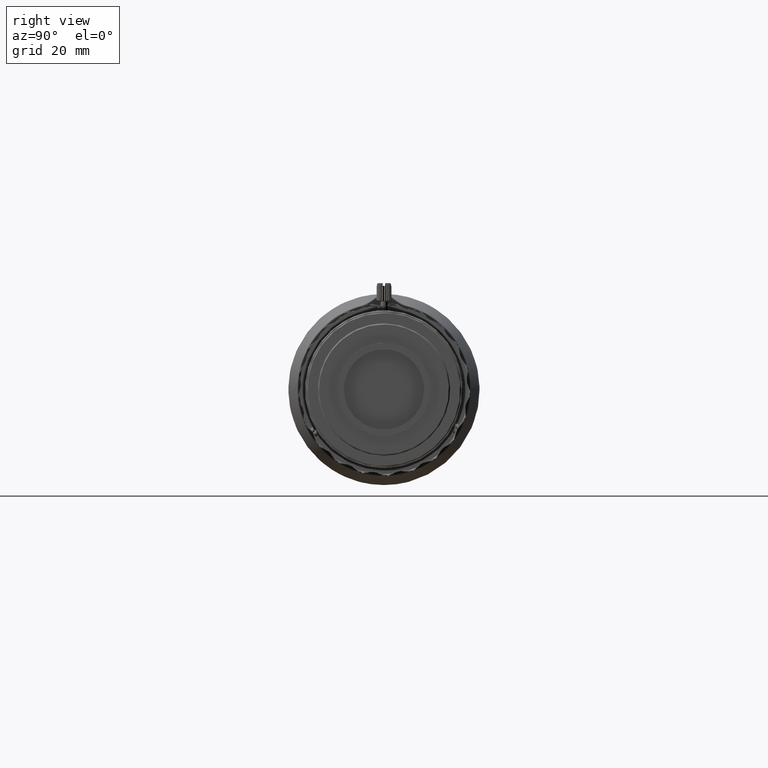
[diagram: clean part render]
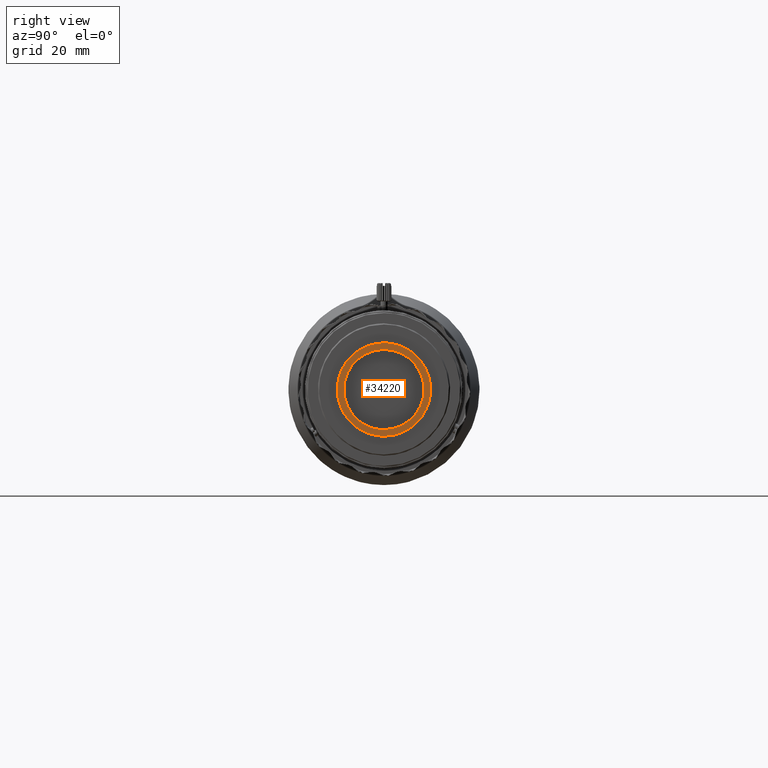
[diagram: same view with one face highlighted and labeled with its STEP entity id]
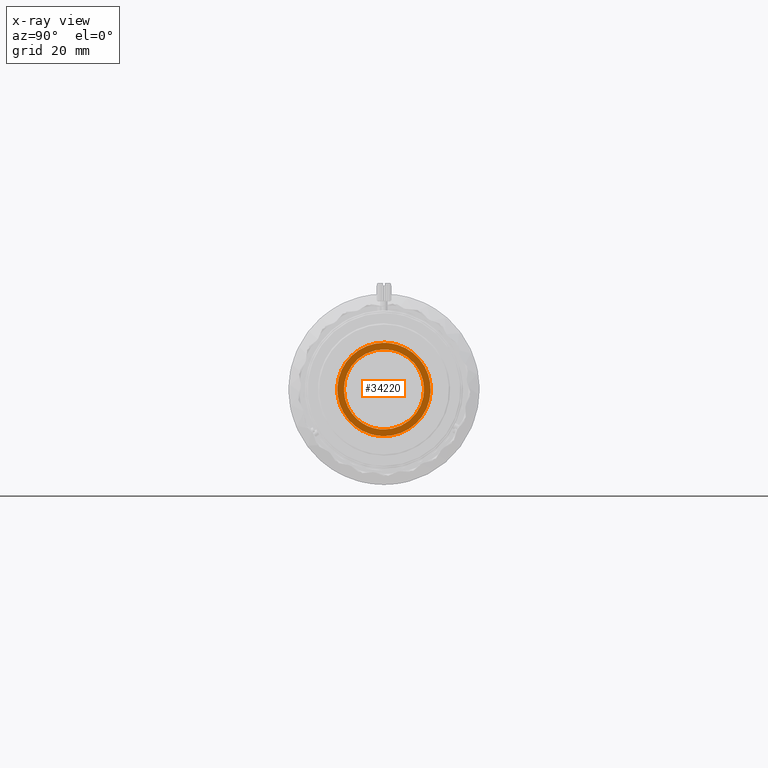
[diagram: x-ray of the same camera — body ghosted, the highlighted face saturated]
A machine part, right view. The second image highlights one B-rep face of the part: STEP entity #34220.
The next image is the same camera in x-ray: the body ghosted, the highlighted face saturated — about 0% of this face is hidden behind the body in this view.
In plain terms, the highlighted face is a freeform B-spline surface patch.
Its self-contained STEP definition (entity closure, byte-faithful):
#84 =( BOUNDED_CURVE ( )  B_SPLINE_CURVE ( 3, ( #19830, #26311, #37650, #22626 ),
 .UNSPECIFIED., .F., .F. ) 
 B_SPLINE_CURVE_WITH_KNOTS ( ( 4, 4 ),
 ( 0.0000000000000000000, 1.000000000000000000 ),
 .UNSPECIFIED. ) 
 CURVE ( )  GEOMETRIC_REPRESENTATION_ITEM ( )  RATIONAL_B_SPLINE_CURVE ( ( 1.000000000000000000, 0.3333333335299309974, 0.3333333335299309974, 1.000000000000000000 ) ) 
 REPRESENTATION_ITEM ( '' )  );
#166 = CARTESIAN_POINT ( 'NONE',  ( 99.43382186600003081, 10.89999941100000669, -6.385071828999999255 ) ) ;
#914 = CARTESIAN_POINT ( 'NONE',  ( 99.43382186600000239, -6.666666666666669494E-10, 12.70000170706231835 ) ) ;
#2207 = CARTESIAN_POINT ( 'NONE',  ( 99.43382186600000239, 12.05238907553014727, 4.089662642862092135 ) ) ;
#2381 =( BOUNDED_CURVE ( )  B_SPLINE_CURVE ( 3, ( #24944, #45305, #166, #42306, #41842, #35148, #34460 ),
 .UNSPECIFIED., .F., .F. ) 
 B_SPLINE_CURVE_WITH_KNOTS ( ( 4, 3, 4 ),
 ( 0.0000000000000000000, 0.5000000000000000000, 1.000000000000000000 ),
 .UNSPECIFIED. ) 
 CURVE ( )  GEOMETRIC_REPRESENTATION_ITEM ( )  RATIONAL_B_SPLINE_CURVE ( ( 1.000000000000000000, 0.8047378540760219412, 0.8047378540760219412, 1.000000000000000000, 0.8047378540760219412, 0.8047378540760219412, 1.000000000000000000 ) ) 
 REPRESENTATION_ITEM ( '' )  );
#2431 = CARTESIAN_POINT ( 'NONE',  ( 99.43382186599998818, 11.41415422850042027, 5.630497843605174246 ) ) ;
#2928 = CARTESIAN_POINT ( 'NONE',  ( 99.43382186600000239, -12.61865940100693528, -1.659776475881465485 ) ) ;
#3156 = CARTESIAN_POINT ( 'NONE',  ( 99.43382186600000239, -6.666666666666669494E-10, 12.70000170706231835 ) ) ;
#5841 = CARTESIAN_POINT ( 'NONE',  ( 99.43382186600000239, -5.630497843605176911, -11.41415424563695957 ) ) ;
#5903 = CARTESIAN_POINT ( 'NONE',  ( 99.43382186600000239, 12.70000170318696853, -0.8338940016816626111 ) ) ;
#6596 = CARTESIAN_POINT ( 'NONE',  ( 99.43382186600000239, 10.09637880029967327, -7.749100425814749116 ) ) ;
#7089 = CARTESIAN_POINT ( 'NONE',  ( 99.43382186600001660, -0.8338940016816626111, 12.70000170318696675 ) ) ;
#8427 = CARTESIAN_POINT ( 'NONE',  ( 99.43382186600001660, -7.749100425814752668, -10.09637880029967327 ) ) ;
#8484 = CARTESIAN_POINT ( 'NONE',  ( 99.43382186600000239, 4.089662642862091246, -12.05238907553014549 ) ) ;
#8734 = CARTESIAN_POINT ( 'NONE',  ( 99.43382186600000239, 12.85240173000000041, -12.85240173000000041 ) ) ;
#9162 = CARTESIAN_POINT ( 'NONE',  ( 99.43382186600000239, 12.29329010660414134, -3.295518369317349094 ) ) ;
#9567 = EDGE_CURVE ( 'NONE', #24780, #23780, #10948, .T. ) ;
#9618 = CARTESIAN_POINT ( 'NONE',  ( 99.43382186600000239, 12.61865940100693528, 1.659776475881463931 ) ) ;
#9847 = CARTESIAN_POINT ( 'NONE',  ( 99.43382186600001660, 1.659776475881463487, 12.61865938387039954 ) ) ;
#9885 = CARTESIAN_POINT ( 'NONE',  ( 99.43382186600000239, -12.70000170318696853, 0.8338940016816613898 ) ) ;
#10076 = CARTESIAN_POINT ( 'NONE',  ( 99.43382186600000239, 5.630497843605174246, 11.41415424563695424 ) ) ;
#10567 = CARTESIAN_POINT ( 'NONE',  ( 99.43382186600001660, -11.02295217345432476, 6.362385400195707419 ) ) ;
#10948 = B_SPLINE_CURVE_WITH_KNOTS ( 'NONE', 3,
 ( #3156, #7089, #42279, #34667, #35351, #38598, #13585, #27705, #20543, #14272, #17516, #10567, #41818, #28393, #13365, #31181, #9885, #24006, #2928, #40148, #44507, #26919, #41020, #12360, #37580, #23447, #8427, #37352, #5841, #44284, #33434, #16273, #12804, #19316 ),
 .UNSPECIFIED., .F., .F.,
 ( 4, 2, 2, 2, 2, 2, 2, 2, 2, 2, 2, 2, 2, 2, 2, 2, 4 ),
 ( 0.0000000000000000000, 0.06250000000000001388, 0.1250000000000000000, 0.1874999999999999722, 0.2499999999999999722, 0.3124999999999999445, 0.3749999999999999445, 0.4375000000000000000, 0.5000000000000000000, 0.5625000000000000000, 0.6250000000000000000, 0.6875000000000000000, 0.7500000000000000000, 0.8125000000000001110, 0.8750000000000001110, 0.9375000000000001110, 1.000000000000000000 ),
 .UNSPECIFIED. ) ;
#11968 = CARTESIAN_POINT ( 'NONE',  ( 99.43382186600000239, 1.659776475881465707, -12.61865940100693528 ) ) ;
#12274 = EDGE_LOOP ( 'NONE', ( #30398, #29707 ) ) ;
#12354 = VERTEX_POINT ( 'NONE', #12758 ) ;
#12360 = CARTESIAN_POINT ( 'NONE',  ( 99.43382186599998818, -10.09637881743620724, -7.749100425814746451 ) ) ;
#12641 = CARTESIAN_POINT ( 'NONE',  ( 99.43382186600001660, 0.8338940016816615008, 12.70000170318696853 ) ) ;
#12758 = CARTESIAN_POINT ( 'NONE',  ( 99.43382186600000239, -6.666666666666669494E-10, 10.89999941594150101 ) ) ;
#12804 = CARTESIAN_POINT ( 'NONE',  ( 99.43382186600000239, -0.8338940016816609457, -12.70000170318696497 ) ) ;
#13069 = VERTEX_POINT ( 'NONE', #44196 ) ;
#13098 = CARTESIAN_POINT ( 'NONE',  ( 99.43382186600001660, 12.70000170318697030, 0.8338940016816626111 ) ) ;
#13327 = CARTESIAN_POINT ( 'NONE',  ( 99.43382186599998818, 9.569909432633094681, -8.390605232302224437 ) ) ;
#13365 = CARTESIAN_POINT ( 'NONE',  ( 99.43382186600000239, -12.29329010660413957, 3.295518369317349094 ) ) ;
#13585 = CARTESIAN_POINT ( 'NONE',  ( 99.43382186599997397, -6.362385400195706531, 11.02295215631779080 ) ) ;
#14032 = ORIENTED_EDGE ( 'NONE', *, *, #9567, .T. ) ;
#14272 = CARTESIAN_POINT ( 'NONE',  ( 99.43382186599997397, -9.569909432633094681, 8.390605232302220884 ) ) ;
#15460 = FACE_OUTER_BOUND ( 'NONE', #24687, .T. ) ;
#15661 = CARTESIAN_POINT ( 'NONE',  ( 99.43382186600000239, 6.362385400195706531, -11.02295215631779257 ) ) ;
#16273 = CARTESIAN_POINT ( 'NONE',  ( 99.43382186600001660, -1.659776475881465041, -12.61865938387039421 ) ) ;
#16338 = CARTESIAN_POINT ( 'NONE',  ( 99.43382186600000239, 11.02295215631779080, 6.362385400195707419 ) ) ;
#17013 = CARTESIAN_POINT ( 'NONE',  ( 99.43382186600001660, 8.390605232302222660, 9.569909432633094681 ) ) ;
#17516 = CARTESIAN_POINT ( 'NONE',  ( 99.43382186599997397, -10.09637880029966972, 7.749100425814748228 ) ) ;
#19151 = CARTESIAN_POINT ( 'NONE',  ( 99.43382186599998818, 5.630497843605176023, -11.41415422850042027 ) ) ;
#19316 = CARTESIAN_POINT ( 'NONE',  ( 99.43382186600000239, -3.333333333333335057E-09, -12.70000170706231835 ) ) ;
#19823 = CARTESIAN_POINT ( 'NONE',  ( 99.43382186600001660, 6.362385400195705643, 11.02295217345432476 ) ) ;
#19830 = CARTESIAN_POINT ( 'NONE',  ( 99.43382186600000239, -6.666666666666669494E-10, 10.89999941594150101 ) ) ;
#20237 = CARTESIAN_POINT ( 'NONE',  ( 99.43382186600000239, -3.333333333333335057E-09, -12.70000170706231835 ) ) ;
#20543 = CARTESIAN_POINT ( 'NONE',  ( 99.43382186600000239, -8.390605232302226213, 9.569909432633094681 ) ) ;
#21376 = B_SPLINE_CURVE_WITH_KNOTS ( 'NONE', 3,
 ( #37193, #25630, #11968, #26084, #8484, #19151, #15661, #33493, #37643, #13327, #6596, #40869, #30917, #44792, #9162, #27436, #5903, #13098, #9618, #34395, #2207, #2431, #16338, #34164, #33717, #17013, #38097, #19823, #10076, #30471, #24198, #9847, #12641, #23732 ),
 .UNSPECIFIED., .F., .F.,
 ( 4, 2, 2, 2, 2, 2, 2, 2, 2, 2, 2, 2, 2, 2, 2, 2, 4 ),
 ( 0.0000000000000000000, 0.06250000000000000000, 0.1250000000000000000, 0.1875000000000000000, 0.2500000000000000000, 0.3125000000000000000, 0.3750000000000000000, 0.4375000000000000000, 0.5000000000000000000, 0.5625000000000000000, 0.6250000000000000000, 0.6875000000000000000, 0.7500000000000000000, 0.8125000000000000000, 0.8750000000000000000, 0.9375000000000000000, 1.000000000000000000 ),
 .UNSPECIFIED. ) ;
#22455 = EDGE_CURVE ( 'NONE', #13069, #12354, #2381, .T. ) ;
#22626 = CARTESIAN_POINT ( 'NONE',  ( 99.43382186600000239, -2.666666666666665316E-09, -10.89999941594150101 ) ) ;
#22872 = CARTESIAN_POINT ( 'NONE',  ( 99.43382186600000239, 12.85240173000000041, 12.85240173000000041 ) ) ;
#23447 = CARTESIAN_POINT ( 'NONE',  ( 99.43382186599998818, -8.390605232302222660, -9.569909432633098234 ) ) ;
#23732 = CARTESIAN_POINT ( 'NONE',  ( 99.43382186600000239, -6.666666666666669494E-10, 12.70000170706231835 ) ) ;
#23780 = VERTEX_POINT ( 'NONE', #20237 ) ;
#24006 = CARTESIAN_POINT ( 'NONE',  ( 99.43382186600001660, -12.70000170318697030, -0.8338940016816616119 ) ) ;
#24198 = CARTESIAN_POINT ( 'NONE',  ( 99.43382186600000239, 3.295518369317349094, 12.29329010660414134 ) ) ;
#24687 = EDGE_LOOP ( 'NONE', ( #36975, #14032 ) ) ;
#24780 = VERTEX_POINT ( 'NONE', #914 ) ;
#24944 = CARTESIAN_POINT ( 'NONE',  ( 99.43382186600000239, -2.666666666666665316E-09, -10.89999941594150101 ) ) ;
#25630 = CARTESIAN_POINT ( 'NONE',  ( 99.43382186599997397, 0.8338940016816613898, -12.70000170318696853 ) ) ;
#25786 = EDGE_CURVE ( 'NONE', #12354, #13069, #84, .T. ) ;
#26084 = CARTESIAN_POINT ( 'NONE',  ( 99.43382186599997397, 3.295518369317346874, -12.29329008946760382 ) ) ;
#26311 = CARTESIAN_POINT ( 'NONE',  ( 99.43382186599993133, -21.79999881300000553, 10.89999940800000289 ) ) ;
#26919 = CARTESIAN_POINT ( 'NONE',  ( 99.43382186600001660, -11.41415422850042027, -5.630497843605174246 ) ) ;
#27436 = CARTESIAN_POINT ( 'NONE',  ( 99.43382186599998818, 12.61865938387039954, -1.659776475881463487 ) ) ;
#27705 = CARTESIAN_POINT ( 'NONE',  ( 99.43382186599998818, -7.749100425814749116, 10.09637881743620902 ) ) ;
#28393 = CARTESIAN_POINT ( 'NONE',  ( 99.43382186599998818, -12.05238905839360974, 4.089662642862091246 ) ) ;
#29707 = ORIENTED_EDGE ( 'NONE', *, *, #25786, .F. ) ;
#30398 = ORIENTED_EDGE ( 'NONE', *, *, #22455, .F. ) ;
#30471 = CARTESIAN_POINT ( 'NONE',  ( 99.43382186600001660, 4.089662642862090358, 12.05238905839361152 ) ) ;
#30917 = CARTESIAN_POINT ( 'NONE',  ( 99.43382186600000239, 11.41415424563695602, -5.630497843605174246 ) ) ;
#31181 = CARTESIAN_POINT ( 'NONE',  ( 99.43382186600001660, -12.61865938387040309, 1.659776475881464153 ) ) ;
#32592 = EDGE_CURVE ( 'NONE', #23780, #24780, #21376, .T. ) ;
#33434 = CARTESIAN_POINT ( 'NONE',  ( 99.43382186600001660, -3.295518369317348206, -12.29329010660414312 ) ) ;
#33493 = CARTESIAN_POINT ( 'NONE',  ( 99.43382186599998818, 7.749100425814749116, -10.09637881743620902 ) ) ;
#33717 = CARTESIAN_POINT ( 'NONE',  ( 99.43382186600000239, 9.569909432633092905, 8.390605232302226213 ) ) ;
#34164 = CARTESIAN_POINT ( 'NONE',  ( 99.43382186599998818, 10.09637881743621080, 7.749100425814750004 ) ) ;
#34220 = ADVANCED_FACE ( 'NONE', ( #44364, #15460 ), #41478, .T. ) ;
#34395 = CARTESIAN_POINT ( 'NONE',  ( 99.43382186600001660, 12.29329008946760382, 3.295518369317348206 ) ) ;
#34460 = CARTESIAN_POINT ( 'NONE',  ( 99.43382186600000239, -6.666666666666669494E-10, 10.89999941594150101 ) ) ;
#34667 = CARTESIAN_POINT ( 'NONE',  ( 99.43382186599997397, -3.295518369317347762, 12.29329008946760382 ) ) ;
#35148 = CARTESIAN_POINT ( 'NONE',  ( 99.43382186600003081, 6.385071827000006195, 10.89999941199999967 ) ) ;
#35351 = CARTESIAN_POINT ( 'NONE',  ( 99.43382186600000239, -4.089662642862092135, 12.05238907553014727 ) ) ;
#36975 = ORIENTED_EDGE ( 'NONE', *, *, #32592, .T. ) ;
#37193 = CARTESIAN_POINT ( 'NONE',  ( 99.43382186600000239, -3.333333333333335057E-09, -12.70000170706231835 ) ) ;
#37215 = CARTESIAN_POINT ( 'NONE',  ( 99.43382186600000239, -12.85240173000000041, -12.85240173000000041 ) ) ;
#37352 = CARTESIAN_POINT ( 'NONE',  ( 99.43382186599997397, -6.362385400195707419, -11.02295217345432654 ) ) ;
#37580 = CARTESIAN_POINT ( 'NONE',  ( 99.43382186600000239, -9.569909432633092905, -8.390605232302226213 ) ) ;
#37643 = CARTESIAN_POINT ( 'NONE',  ( 99.43382186600000239, 8.390605232302224437, -9.569909432633094681 ) ) ;
#37650 = CARTESIAN_POINT ( 'NONE',  ( 99.43382186599993133, -21.79999881600000933, -10.89999940300000780 ) ) ;
#38097 = CARTESIAN_POINT ( 'NONE',  ( 99.43382186600000239, 7.749100425814749116, 10.09637880029967327 ) ) ;
#38598 = CARTESIAN_POINT ( 'NONE',  ( 99.43382186599997397, -5.630497843605174246, 11.41415422850041672 ) ) ;
#40148 = CARTESIAN_POINT ( 'NONE',  ( 99.43382186600001660, -12.29329008946760382, -3.295518369317346874 ) ) ;
#40231 = CARTESIAN_POINT ( 'NONE',  ( 99.43382186600000239, -12.85240173000000041, 12.85240173000000041 ) ) ;
#40869 = CARTESIAN_POINT ( 'NONE',  ( 99.43382186599998818, 11.02295217345432299, -6.362385400195705643 ) ) ;
#41020 = CARTESIAN_POINT ( 'NONE',  ( 99.43382186600000239, -11.02295215631779080, -6.362385400195705643 ) ) ;
#41478 = B_SPLINE_SURFACE_WITH_KNOTS ( 'NONE', 1, 1, ( 
 ( #40231, #22872 ),
 ( #37215, #8734 ) ),
 .UNSPECIFIED., .F., .F., .F.,
 ( 2, 2 ),
 ( 2, 2 ),
 ( 0.0000000000000000000, 1.000000000000000000 ),
 ( 0.0000000000000000000, 1.000000000000000000 ),
 .UNSPECIFIED. ) ;
#41818 = CARTESIAN_POINT ( 'NONE',  ( 99.43382186599998818, -11.41415424563695247, 5.630497843605174246 ) ) ;
#41842 = CARTESIAN_POINT ( 'NONE',  ( 99.43382186600003081, 10.89999941300000330, 6.385071823999998841 ) ) ;
#42279 = CARTESIAN_POINT ( 'NONE',  ( 99.43382186600001660, -1.659776475881464153, 12.61865940100693706 ) ) ;
#42306 = CARTESIAN_POINT ( 'NONE',  ( 99.43382186600000239, 10.89999941200000144, -2.000000000000000125E-09 ) ) ;
#44196 = CARTESIAN_POINT ( 'NONE',  ( 99.43382186600000239, -2.666666666666665316E-09, -10.89999941594150101 ) ) ;
#44284 = CARTESIAN_POINT ( 'NONE',  ( 99.43382186600000239, -4.089662642862090358, -12.05238905839360442 ) ) ;
#44364 = FACE_BOUND ( 'NONE', #12274, .T. ) ;
#44507 = CARTESIAN_POINT ( 'NONE',  ( 99.43382186600000239, -12.05238907553014727, -4.089662642862091246 ) ) ;
#44792 = CARTESIAN_POINT ( 'NONE',  ( 99.43382186599998818, 12.05238905839360619, -4.089662642862091246 ) ) ;
#45305 = CARTESIAN_POINT ( 'NONE',  ( 99.43382186600003081, 6.385071822000004893, -10.89999941500000702 ) ) ;